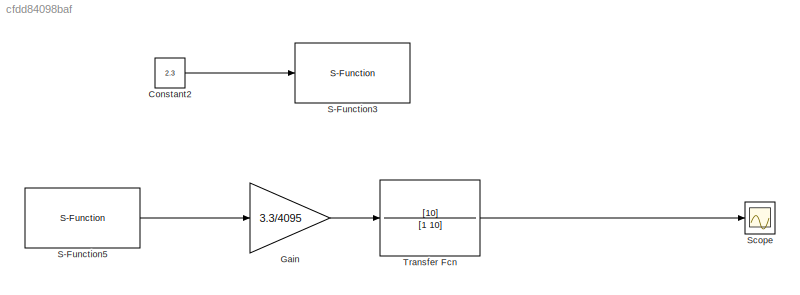
MODEL slx_cfdd84098baf
KIND model
CONFIG AbsTol = auto
CONFIG EnableMultiTasking = off
CONFIG FixedStep = ts
CONFIG MaxStep = auto
CONFIG MinStep = auto
CONFIG RelTol = 1e-3
CONFIG SampleTimeConstraint = Unconstrained
CONFIG SolverName = ode4
CONFIG StartTime = 0.0
CONFIG StopTime = inf
BLOCK [Constant] Constant2
  SampleTime = ts
  Value = 2.3
BLOCK [Gain] Gain
  Gain = 3.3/4095
BLOCK [S-Function] S-Function3
  EnableBusSupport = off
  FunctionName = DueDaqSfun
  Parameters = TimeInfo,BlockInfo,ParamInfo,PortInfo
  Ports = [1]
  SFcnIsStateOwnerBlock = off
  SFunctionDeploymentMode = off
BLOCK [S-Function] S-Function5
  EnableBusSupport = off
  FunctionName = DueDaqSfun
  Parameters = TimeInfo,BlockInfo,ParamInfo,PortInfo
  Ports = [0, 1]
  SFcnIsStateOwnerBlock = off
  SFunctionDeploymentMode = off
BLOCK [Scope] Scope
  Floating = off
  NumInputPorts = 1
  Ports = [1]
  ScopeSpecificationString = Simulink.scopes.TimeScopeBlockCfg('CurrentConfiguration', extmgr.ConfigurationSet(extmgr.Configuration('Core','General UI',true),extmgr.Configuration('Core','Source UI',true),extmgr.Configuration('Sources','WiredSimulink',true),extmgr.Configuration('Visuals','Time Domain',true,'SerializedDisplays',{struct('MinYLimReal','-0.17442','MaxYLimReal','1.5698','YLabelReal','','MinYLimMag','0.00000','MaxYL...<+1658ch>
BLOCK [TransferFcn] Transfer Fcn
  Denominator = [1 10]
  Numerator = [10]
LINE Constant2:1 -> S-Function3:1
LINE Gain:1 -> Transfer Fcn:1
LINE S-Function5:1 -> Gain:1
LINE Transfer Fcn:1 -> Scope:1
